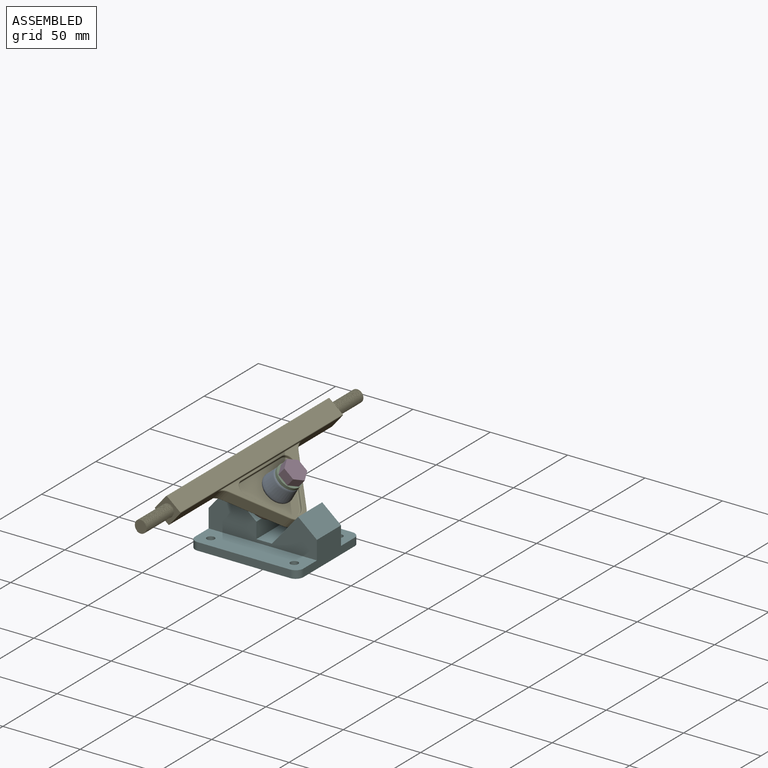
[diagram: assembled view]
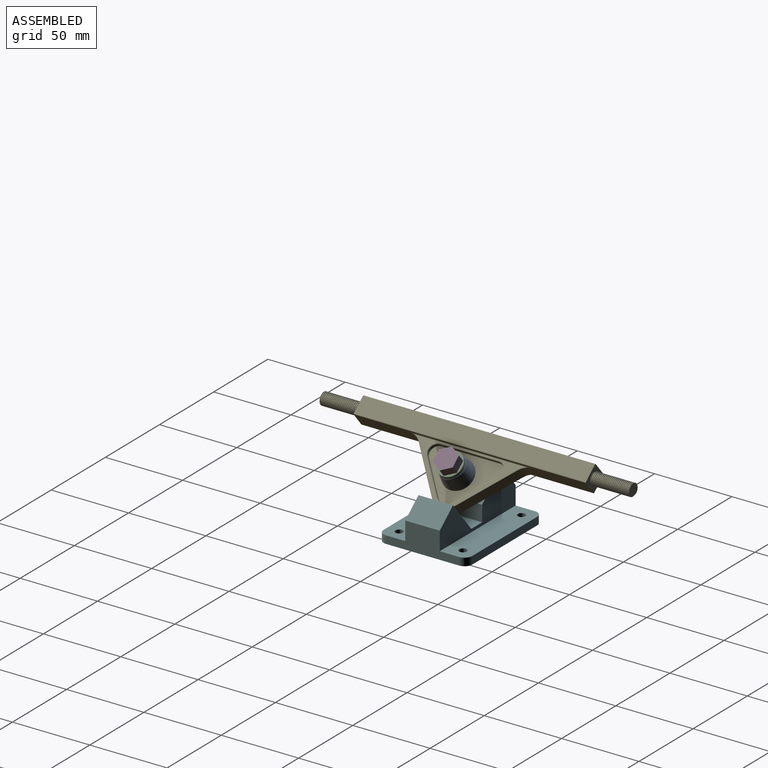
[diagram: assembled view, second angle]
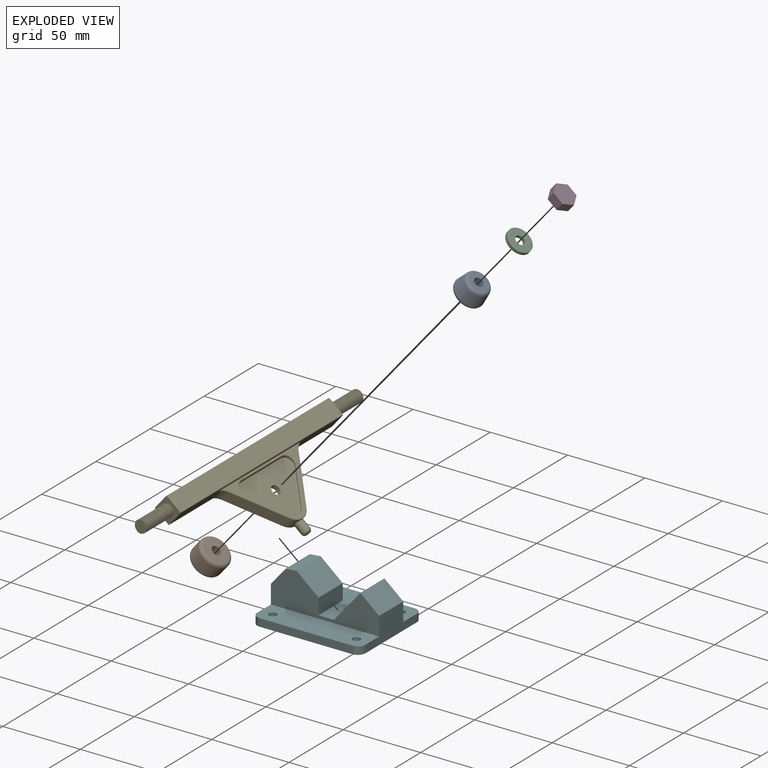
[diagram: exploded view]
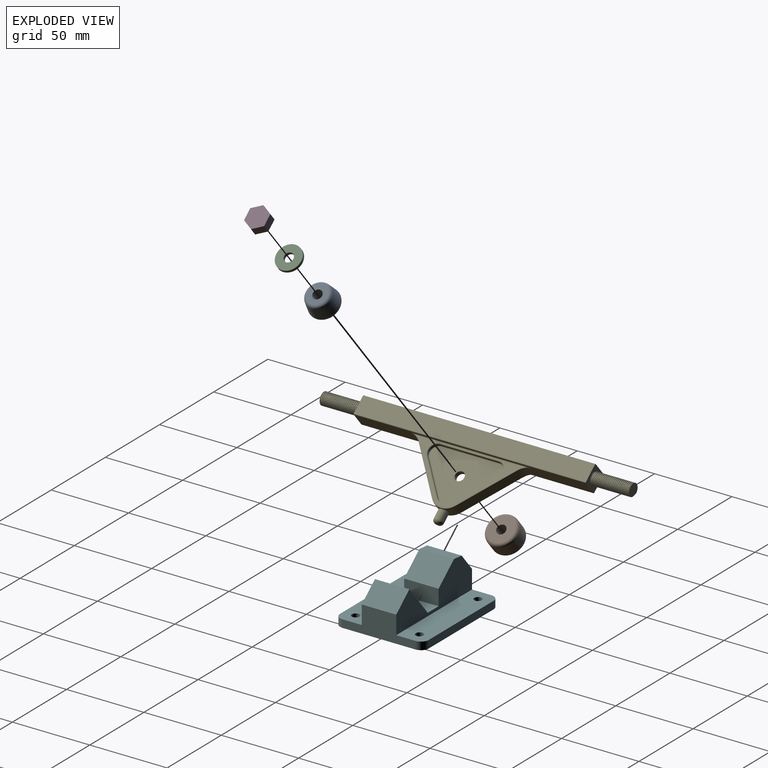
[diagram: exploded view, second angle]
ASSEMBLY  parts=6 mates=5
PART A: 6 faces, bbox 20.8x20.8x12 mm
  f0: cone r=10mm half-angle=10deg, axis (0,0,-1), area 453.3mm2, adj f3,f4
  f1: plane 12.41x12.41mm, normal (0,0,1), area 92.7mm2, adj f4,f5
  f2: plane 15.23x15.23mm, normal (0,0,-1), area 154mm2, adj f3,f5
  f3: torus R=7.62mm, axis (0,0,1), area 196.5mm2, adj f0,f2
  f4: torus R=6.21mm, axis (0,0,1), area 129.7mm2, adj f0,f1
  f5: cylinder r=3mm len=12mm, axis (0,0,1), area 226.2mm2, adj f1,f2
PART B: 6 faces, bbox 21.6x21.6x12 mm
  f0: cylinder r=10mm len=20mm, axis (0,0,-1), area 502.7mm2, adj f3,f4
  f1: plane 16x16mm, normal (0,0,1), area 172.8mm2, adj f4,f5
  f2: plane 16x16mm, normal (0,0,-1), area 172.8mm2, adj f3,f5
  f3: torus R=8mm, axis (0,0,1), area 183mm2, adj f0,f2
  f4: torus R=8mm, axis (0,0,1), area 183mm2, adj f0,f1
  f5: cylinder r=3mm len=12mm, axis (0,0,1), area 226.2mm2, adj f1,f2
PART C: 4 faces, bbox 16x16x2 mm
  f0: cylinder r=8mm len=16mm, axis (0,0,-1), area 100.5mm2, adj f1,f2
  f1: plane 16x16mm, normal (0,0,1), area 172.8mm2, adj f0,f3
  f2: plane 16x16mm, normal (0,0,-1), area 172.8mm2, adj f0,f3
  f3: cylinder r=3mm len=6mm, axis (0,0,1), area 37.7mm2, adj f1,f2
PART D: 8 faces, bbox 15x13x6 mm
  f0: plane 7.51x6mm, normal (0,1,0), area 45mm2, adj f1,f5,f6,f7
  f1: plane 6.5x6mm, normal (-0.87,0.5,0), area 45mm2, adj f0,f2,f6,f7
  f2: plane 6.5x6mm, normal (-0.87,-0.5,0), area 45mm2, adj f1,f3,f6,f7
  f3: plane 7.51x6mm, normal (0,-1,0), area 45mm2, adj f2,f4,f6,f7
  f4: plane 6.5x6mm, normal (0.87,-0.5,0), area 45mm2, adj f3,f5,f6,f7
  f5: plane 6.5x6mm, normal (0.87,0.5,0), area 45mm2, adj f0,f4,f6,f7
  f6: plane 15.01x13mm, normal (0,0,1), area 146.4mm2, adj f0,f1,f2,f3,f4,f5
  f7: plane 15.01x13mm, normal (0,0,-1), area 146.4mm2, adj f0,f1,f2,f3,f4,f5
PART E: 87 faces, bbox 200.2x12x56 mm
  f0: plane 70.31x35.11mm, normal (0,1,0), area 295mm2, adj f42,f43,f44,f45,f46,f47,f74,f75
  f1: cylinder r=10mm len=15.32mm, axis (0,-1,0), area 93.6mm2, adj f20,f21,f25,f69,f77
  f2: cylinder r=4mm len=25mm, axis (-1,0,0), area 236.2mm2, adj f3,f5,f6,f7,f8
  f3: bspline ~25.17x10.1mm, area 225.8mm2, adj f2,f4,f6,f8
  f4: cylinder r=3.62mm len=25mm, axis (-1,0,0), area 356.1mm2, adj f3,f5,f6,f7,f8
  f5: bspline ~24.83x10.1mm, area 222.5mm2, adj f2,f4,f7,f8
  f6: plane 8x8mm, normal (1,0,0), area 48mm2, adj f2,f3,f4,f7
  f7: plane 0.38x0.25mm, normal (0,0,1), area 0.1mm2, adj f2,f4,f5,f6
  f8: plane 12x12mm, normal (1,0,0), area 98mm2, adj f2,f3,f4,f5,f10,f11,f12,f13
  f9: plane 12x12mm, normal (-1,0,0), area 98mm2, adj f10,f11,f12,f13,f16,f17,f18,f19
  f10: plane 150x11mm, normal (0,-1,0), area 1650mm2, adj f8,f9,f82,f85
  f11: plane 150x11mm, normal (0,0,1), area 943.6mm2, adj f8,f9,f23,f24,f68,f70,f72,f76
  f12: plane 150x11mm, normal (0,1,0), area 1650mm2, adj f8,f9,f83,f84
  f13: plane 150x11mm, normal (0,0,-1), area 1650mm2, adj f8,f9,f84,f85
  f14: plane 0.38x0.25mm, normal (0,0,-1), area 0.1mm2, adj f15,f17,f18,f19
  f15: plane 8x8mm, normal (-1,0,0), area 48mm2, adj f14,f16,f17,f19
  f16: bspline ~25.17x10.1mm, area 225.9mm2, adj f9,f15,f17,f19
  f17: cylinder r=3.62mm len=25mm, axis (-1,0,0), area 230.9mm2, adj f9,f14,f15,f16,f18
  f18: bspline ~24.83x10.1mm, area 222.5mm2, adj f9,f14,f17,f19
  f19: cylinder r=4mm len=25mm, axis (-1,0,0), area 375.8mm2, adj f9,f14,f15,f16,f18
  f20: plane 28.97x24.31mm, normal (-0.77,0,0.64), area 264.7mm2, adj f1,f23,f71,f75
  f21: plane 28.97x24.31mm, normal (0.77,0,0.64), area 264.7mm2, adj f1,f24,f67,f79
  f22: plane 70.31x35.11mm, normal (0,-1,0), area 295mm2, adj f54,f55,f56,f57,f58,f59,f66,f67
  f23: cylinder r=10mm len=7.66mm, axis (0,1,0), area 61.1mm2, adj f11,f20,f73,f74
  f24: cylinder r=10mm len=7.66mm, axis (0,-1,0), area 61.1mm2, adj f11,f21,f66,f81
  f25: cylinder r=3mm len=6.35mm, axis (0,0,-1), area 115.3mm2, adj f1,f27
  f26: plane 2x2mm, normal (0,0,1), area 3.1mm2, adj f27
  f27: torus R=1mm, axis (0,0,1), area 44.9mm2, adj f25,f26
  f28: plane 20.75x17.42mm, normal (-0.77,0,-0.64), area 54.2mm2, adj f29,f33,f58,f64
  f29: cylinder r=7mm len=10.72mm, axis (0,-1,0), area 24.4mm2, adj f28,f30,f56,f62
  f30: plane 20.75x17.42mm, normal (0.77,0,-0.64), area 54.2mm2, adj f29,f31,f54,f60
  f31: cylinder r=5mm len=8.21mm, axis (0,-1,0), area 22.7mm2, adj f30,f32,f55,f61
  f32: plane 37.89x2mm, normal (0,0,1), area 75.8mm2, adj f31,f33,f57,f63
  f33: cylinder r=5mm len=8.21mm, axis (0,-1,0), area 22.7mm2, adj f28,f32,f59,f65
  f34: plane 46.89x30.47mm, normal (0,-1,0), area 892mm2, adj f60,f61,f62,f63,f64,f65,f86
  f35: plane 20.75x17.42mm, normal (-0.77,0,-0.64), area 27.1mm2, adj f36,f40,f45,f53
  f36: cylinder r=5mm len=8.21mm, axis (0,1,0), area 11.3mm2, adj f35,f37,f47,f51
  f37: plane 37.89x1mm, normal (0,0,1), area 37.9mm2, adj f36,f38,f46,f49
  f38: cylinder r=5mm len=8.21mm, axis (0,1,0), area 11.3mm2, adj f37,f39,f44,f48
  f39: plane 20.75x17.42mm, normal (0.77,0,-0.64), area 27.1mm2, adj f38,f40,f42,f50
  f40: cylinder r=7mm len=10.72mm, axis (0,1,0), area 12.2mm2, adj f35,f39,f43,f52
  f41: plane 46.89x30.47mm, normal (0,1,0), area 892mm2, adj f48,f49,f50,f51,f52,f53,f86
  f42: cylinder r=0.5mm len=21.08mm, axis (0.64,0,0.77), area 21.3mm2, adj f0,f39,f43,f44
  f43: torus R=7.5mm, axis (0,-1,0), area 9.8mm2, adj f0,f40,f42,f45
  f44: torus R=5.5mm, axis (0,-1,0), area 9.2mm2, adj f0,f38,f42,f46
  f45: cylinder r=0.5mm len=21.08mm, axis (0.64,0,-0.77), area 21.3mm2, adj f0,f35,f43,f47
  f46: cylinder r=0.5mm len=37.89mm, axis (-1,0,0), area 29.8mm2, adj f0,f37,f44,f47
  f47: torus R=5.5mm, axis (0,-1,0), area 9.2mm2, adj f0,f36,f45,f46
  f48: torus R=4.5mm, axis (0,1,0), area 8.6mm2, adj f38,f41,f49,f50
  f49: cylinder r=0.5mm len=37.89mm, axis (-1,0,0), area 29.8mm2, adj f37,f41,f48,f51
  f50: cylinder r=0.5mm len=21.08mm, axis (0.64,0,0.77), area 21.3mm2, adj f39,f41,f48,f52
  f51: torus R=4.5mm, axis (0,1,0), area 8.6mm2, adj f36,f41,f49,f53
  f52: torus R=6.5mm, axis (0,1,0), area 9.3mm2, adj f40,f41,f50,f53
  f53: cylinder r=0.5mm len=21.08mm, axis (0.64,0,-0.77), area 21.3mm2, adj f35,f41,f51,f52
  f54: cylinder r=0.5mm len=21.08mm, axis (0.64,0,0.77), area 21.3mm2, adj f22,f30,f55,f56
  f55: torus R=5.5mm, axis (0,-1,0), area 9.2mm2, adj f22,f31,f54,f57
  f56: torus R=7.5mm, axis (0,-1,0), area 9.8mm2, adj f22,f29,f54,f58
  f57: cylinder r=0.5mm len=37.89mm, axis (-1,0,0), area 29.8mm2, adj f22,f32,f55,f59
  f58: cylinder r=0.5mm len=21.08mm, axis (0.64,0,-0.77), area 21.3mm2, adj f22,f28,f56,f59
  f59: torus R=5.5mm, axis (0,-1,0), area 9.2mm2, adj f22,f33,f57,f58
  f60: cylinder r=0.5mm len=21.08mm, axis (-0.64,0,-0.77), area 21.3mm2, adj f30,f34,f61,f62
  f61: torus R=4.5mm, axis (0,-1,0), area 8.6mm2, adj f31,f34,f60,f63
  f62: torus R=6.5mm, axis (0,-1,0), area 9.3mm2, adj f29,f34,f60,f64
  f63: cylinder r=0.5mm len=37.89mm, axis (1,0,0), area 29.8mm2, adj f32,f34,f61,f65
  f64: cylinder r=0.5mm len=21.08mm, axis (-0.64,0,0.77), area 21.3mm2, adj f28,f34,f62,f65
  f65: torus R=4.5mm, axis (0,-1,0), area 8.6mm2, adj f33,f34,f63,f64
  f66: torus R=10.5mm, axis (0,-1,0), area 5.2mm2, adj f22,f24,f67,f68
  f67: cylinder r=0.5mm len=29.29mm, axis (0.64,0,-0.77), area 29.7mm2, adj f21,f22,f66,f69
  f68: bspline ~4.78x1mm, area 1.7mm2, adj f11,f66,f70
  f69: torus R=9.5mm, axis (0,-1,0), area 13.5mm2, adj f1,f22,f67,f71
  f70: cylinder r=0.5mm len=70.31mm, axis (-1,0,0), area 55.2mm2, adj f11,f22,f68,f72
  f71: cylinder r=0.5mm len=29.29mm, axis (0.64,0,0.77), area 29.7mm2, adj f20,f22,f69,f73
  f72: bspline ~4.78x1mm, area 1.7mm2, adj f11,f70,f73
  f73: torus R=10.5mm, axis (0,-1,0), area 5.2mm2, adj f22,f23,f71,f72
  f74: torus R=10.5mm, axis (0,-1,0), area 5.2mm2, adj f0,f23,f75,f76
  f75: cylinder r=0.5mm len=29.29mm, axis (-0.64,0,-0.77), area 29.7mm2, adj f0,f20,f74,f77
  f76: bspline ~4.78x1mm, area 1.7mm2, adj f11,f74,f78
  f77: torus R=9.5mm, axis (0,-1,0), area 13.5mm2, adj f0,f1,f75,f79
  f78: cylinder r=0.5mm len=70.31mm, axis (1,0,0), area 55.2mm2, adj f0,f11,f76,f80
  f79: cylinder r=0.5mm len=29.29mm, axis (-0.64,0,0.77), area 29.7mm2, adj f0,f21,f77,f81
  f80: bspline ~4.78x1mm, area 1.7mm2, adj f11,f78,f81
  f81: torus R=10.5mm, axis (0,-1,0), area 5.2mm2, adj f0,f24,f79,f80
  f82: cylinder r=0.5mm len=150mm, axis (1,0,0), area 117.8mm2, adj f8,f9,f10,f11
  f83: cylinder r=0.5mm len=150mm, axis (-1,0,0), area 117.8mm2, adj f8,f9,f11,f12
  f84: cylinder r=0.5mm len=150mm, axis (1,0,0), area 117.8mm2, adj f8,f9,f12,f13
  f85: cylinder r=0.5mm len=150mm, axis (-1,0,0), area 117.8mm2, adj f8,f9,f10,f13
  f86: cylinder r=3mm len=6mm, axis (0,-1,0), area 56.5mm2, adj f34,f41
PART F: 26 faces, bbox 70x57.3x29.1 mm
  f0: plane 22.28x10mm, normal (0,0,1), area 222.7mm2, adj f16,f17,f19,f20
  f1: plane 70x17.5mm, normal (0,0,1), area 1175mm2, adj f2,f4,f5,f8,f9,f14,f15,f17
  f2: plane 47.28x17mm, normal (1,0,0), area 503.7mm2, adj f1,f10,f11,f12,f15,f16,f17,f18
  f3: plane 60x5mm, normal (0,1,0), area 300mm2, adj f10,f11,f12,f13
  f4: plane 47.28x17mm, normal (-1,0,0), area 503.7mm2, adj f1,f10,f11,f13,f14,f16,f17,f22
  f5: cylinder r=2.5mm len=5mm, axis (0,0,-1), area 78.5mm2, adj f1,f11
  f6: cylinder r=2.5mm len=5mm, axis (0,0,-1), area 78.5mm2, adj f10,f11
  f7: cylinder r=2.5mm len=5mm, axis (0,0,-1), area 78.5mm2, adj f10,f11
  f8: plane 60x5mm, normal (0,-1,0), area 300mm2, adj f1,f11,f14,f15
  f9: cylinder r=2.5mm len=5mm, axis (0,0,-1), area 78.5mm2, adj f1,f11
  f10: plane 70x17.5mm, normal (0,0,1), area 1175mm2, adj f2,f3,f4,f6,f7,f12,f13,f16
  f11: plane 70x57.28mm, normal (0,0,-1), area 3909.2mm2, adj f2,f3,f4,f5,f6,f7,f8,f9
  f12: cylinder r=5mm len=5mm, axis (0,0,1), area 39.3mm2, adj f2,f3,f10,f11
  f13: cylinder r=5mm len=5mm, axis (0,0,-1), area 39.3mm2, adj f3,f4,f10,f11
  f14: cylinder r=5mm len=5mm, axis (0,0,1), area 39.3mm2, adj f1,f4,f8,f11
  f15: cylinder r=5mm len=5mm, axis (0,0,-1), area 39.3mm2, adj f1,f2,f8,f11
  f16: plane 70x24.11mm, normal (0,1,0), area 1029.7mm2, adj f0,f2,f4,f10,f18,f19,f20,f21
  f17: plane 70x24.11mm, normal (0,-1,0), area 1029.7mm2, adj f0,f1,f2,f4,f18,f19,f20,f21
  f18: plane 22.28x12.17mm, normal (0.64,0,0.77), area 353.8mm2, adj f2,f16,f17,f19
  f19: plane 22.28x20.21mm, normal (-0.77,0,0.64), area 559.4mm2, adj f0,f16,f17,f18,f23
  f20: plane 22.28x10.2mm, normal (1,0,0), area 227.3mm2, adj f0,f16,f17,f21
  f21: plane 22.28x14.19mm, normal (0.64,0,0.77), area 412.5mm2, adj f16,f17,f20,f25
  f22: plane 22.28x11.49mm, normal (-0.77,0,0.64), area 334.1mm2, adj f4,f16,f17,f25
  f23: cylinder r=3mm len=11.52mm, axis (-0.77,0,0.64), area 188.5mm2, adj f19,f24
  f24: plane 6x4.6mm, normal (-0.77,0,0.64), area 28.3mm2, adj f23
  f25: plane 22.28x7.04mm, normal (-0.09,0,1), area 157.5mm2, adj f16,f17,f21,f22
PLACE A rot(axis=(0,1,0),40deg) t=(-15.69,3.11,34.26)mm
PLACE B rot(axis=(0,1,0),40deg) t=(-25.33,3.11,22.77)mm
PLACE C rot(axis=(0,1,0),40deg) t=(-7.98,3.11,43.45)mm
PLACE D rot(axis=(0,1,0),40deg) t=(-6.69,3.11,44.98)mm
PLACE E rot(axis=(0.67,0.67,0.31),145.2deg) t=(-33.15,3.11,46.3)mm
PLACE F t=(-16.39,3.11,1.53)mm
MATE fastened C.f3 <-> A.f5  axis (-0.64,0,-0.77) through (-7.98,3.11,43.45)mm
MATE fastened B.f5 <-> E.f86  axis (0.64,0,0.77) through (-17.62,3.11,31.96)mm
MATE fastened E.f25 <-> F.f23  axis (-0.77,0,0.64) through (-1.27,3.11,19.55)mm
MATE fastened A.f5 <-> E.f86  axis (-0.64,0,-0.77) through (-15.69,3.11,34.26)mm
MATE fastened D.f7 <-> C.f3  axis (-0.64,0,-0.77) through (-6.69,3.11,44.98)mm
